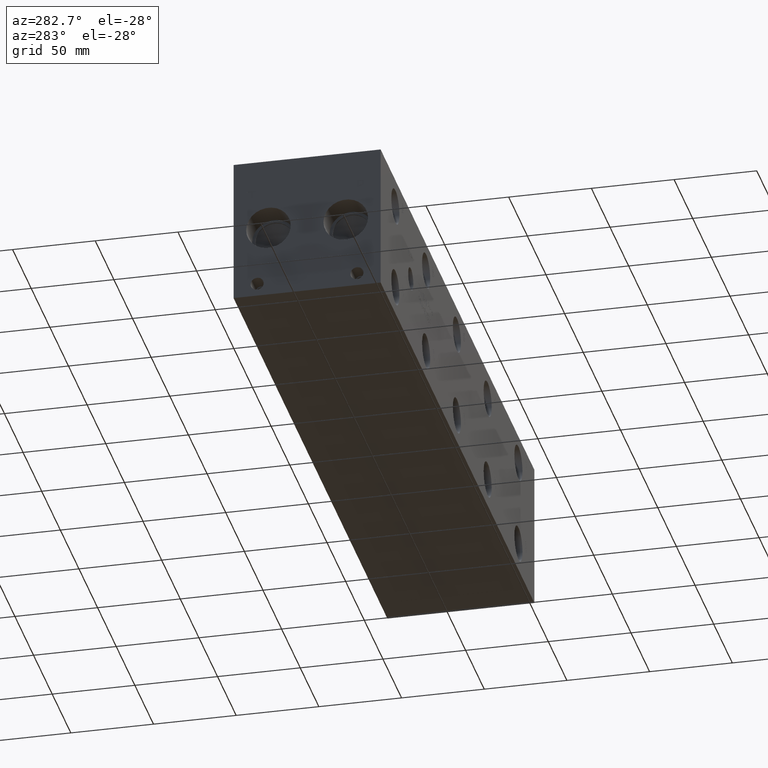
[diagram: clean part render]
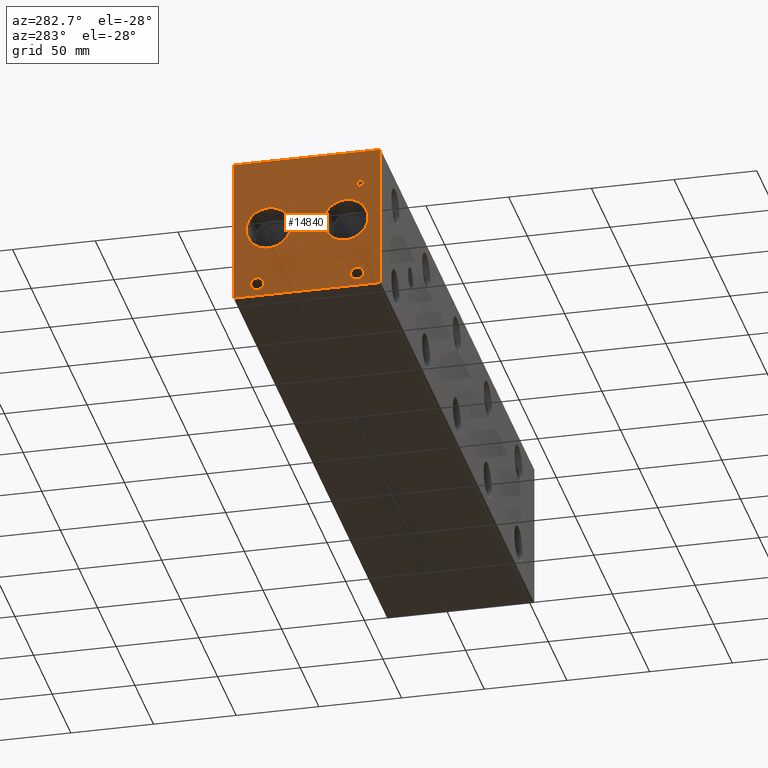
[diagram: same view with one face highlighted and labeled with its STEP entity id]
A machine part, auxiliary view. The second image highlights one B-rep face of the part: STEP entity #14840.
In plain terms, the highlighted planar face has unit normal (-1, 0, 0).
Its self-contained STEP definition (entity closure, byte-faithful):
#179=CIRCLE('',#15650,3.9624);
#180=CIRCLE('',#15651,3.9624);
#181=CIRCLE('',#15652,3.9624);
#182=CIRCLE('',#15653,3.9624);
#183=CIRCLE('',#15654,13.462);
#184=CIRCLE('',#15655,13.462);
#185=CIRCLE('',#15656,13.462);
#186=CIRCLE('',#15657,13.462);
#532=FACE_BOUND('',#2150,.T.);
#533=FACE_BOUND('',#2151,.T.);
#534=FACE_BOUND('',#2152,.T.);
#535=FACE_BOUND('',#2153,.T.);
#536=FACE_BOUND('',#2154,.T.);
#537=FACE_BOUND('',#2155,.T.);
#706=B_SPLINE_CURVE_WITH_KNOTS('',2,(#20290,#20291,#20292,#20293),
 .UNSPECIFIED.,.F.,.F.,(3,1,3),(0.,1.,2.),.UNSPECIFIED.);
#708=B_SPLINE_CURVE_WITH_KNOTS('',2,(#20311,#20312,#20313,#20314),
 .UNSPECIFIED.,.F.,.F.,(3,1,3),(0.,1.,2.),.UNSPECIFIED.);
#710=B_SPLINE_CURVE_WITH_KNOTS('',2,(#20360,#20361,#20362,#20363),
 .UNSPECIFIED.,.F.,.F.,(3,1,3),(0.,1.,2.),.UNSPECIFIED.);
#712=B_SPLINE_CURVE_WITH_KNOTS('',2,(#20378,#20379,#20380,#20381),
 .UNSPECIFIED.,.F.,.F.,(3,1,3),(0.,1.,2.),.UNSPECIFIED.);
#1338=FACE_OUTER_BOUND('',#2149,.T.);
#2149=EDGE_LOOP('',(#9745,#9746,#9747,#9748));
#2150=EDGE_LOOP('',(#9749,#9750,#9751,#9752,#9753,#9754,#9755,#9756));
#2151=EDGE_LOOP('',(#9757,#9758));
#2152=EDGE_LOOP('',(#9759,#9760));
#2153=EDGE_LOOP('',(#9761,#9762));
#2154=EDGE_LOOP('',(#9763,#9764));
#2155=EDGE_LOOP('',(#9765,#9766,#9767,#9768,#9769,#9770,#9771,#9772,#9773));
#3109=LINE('',#20140,#4499);
#3113=LINE('',#20148,#4503);
#3116=LINE('',#20154,#4506);
#3119=LINE('',#20160,#4509);
#3122=LINE('',#20166,#4512);
#3125=LINE('',#20172,#4515);
#3128=LINE('',#20178,#4518);
#3131=LINE('',#20183,#4521);
#3149=LINE('',#20323,#4539);
#3152=LINE('',#20329,#4542);
#3155=LINE('',#20335,#4545);
#3158=LINE('',#20341,#4548);
#3161=LINE('',#20347,#4551);
#3165=LINE('',#20390,#4555);
#3166=LINE('',#20392,#4556);
#3167=LINE('',#20394,#4557);
#3168=LINE('',#20395,#4558);
#4499=VECTOR('',#16677,10.);
#4503=VECTOR('',#16683,10.);
#4506=VECTOR('',#16688,10.);
#4509=VECTOR('',#16693,10.);
#4512=VECTOR('',#16698,10.);
#4515=VECTOR('',#16703,10.);
#4518=VECTOR('',#16708,10.);
#4521=VECTOR('',#16713,10.);
#4539=VECTOR('',#16741,10.);
#4542=VECTOR('',#16746,10.);
#4545=VECTOR('',#16751,10.);
#4548=VECTOR('',#16756,10.);
#4551=VECTOR('',#16761,10.);
#4555=VECTOR('',#16769,10.);
#4556=VECTOR('',#16770,10.);
#4557=VECTOR('',#16771,10.);
#4558=VECTOR('',#16772,10.);
#5889=VERTEX_POINT('',#20138);
#5890=VERTEX_POINT('',#20139);
#5893=VERTEX_POINT('',#20147);
#5895=VERTEX_POINT('',#20153);
#5897=VERTEX_POINT('',#20159);
#5899=VERTEX_POINT('',#20165);
#5901=VERTEX_POINT('',#20171);
#5903=VERTEX_POINT('',#20177);
#5919=VERTEX_POINT('',#20288);
#5920=VERTEX_POINT('',#20289);
#5923=VERTEX_POINT('',#20310);
#5925=VERTEX_POINT('',#20322);
#5927=VERTEX_POINT('',#20328);
#5929=VERTEX_POINT('',#20334);
#5931=VERTEX_POINT('',#20340);
#5933=VERTEX_POINT('',#20346);
#5935=VERTEX_POINT('',#20359);
#5937=VERTEX_POINT('',#20388);
#5938=VERTEX_POINT('',#20389);
#5939=VERTEX_POINT('',#20391);
#5940=VERTEX_POINT('',#20393);
#5941=VERTEX_POINT('',#20396);
#5942=VERTEX_POINT('',#20397);
#5943=VERTEX_POINT('',#20400);
#5944=VERTEX_POINT('',#20401);
#5945=VERTEX_POINT('',#20404);
#5946=VERTEX_POINT('',#20405);
#5947=VERTEX_POINT('',#20408);
#5948=VERTEX_POINT('',#20409);
#7415=EDGE_CURVE('',#5889,#5890,#3109,.T.);
#7419=EDGE_CURVE('',#5893,#5889,#3113,.T.);
#7422=EDGE_CURVE('',#5895,#5893,#3116,.T.);
#7425=EDGE_CURVE('',#5897,#5895,#3119,.T.);
#7428=EDGE_CURVE('',#5899,#5897,#3122,.T.);
#7431=EDGE_CURVE('',#5901,#5899,#3125,.T.);
#7434=EDGE_CURVE('',#5903,#5901,#3128,.T.);
#7437=EDGE_CURVE('',#5890,#5903,#3131,.T.);
#7460=EDGE_CURVE('',#5919,#5920,#706,.T.);
#7464=EDGE_CURVE('',#5923,#5919,#708,.T.);
#7467=EDGE_CURVE('',#5925,#5923,#3149,.T.);
#7470=EDGE_CURVE('',#5927,#5925,#3152,.T.);
#7473=EDGE_CURVE('',#5929,#5927,#3155,.T.);
#7476=EDGE_CURVE('',#5931,#5929,#3158,.T.);
#7479=EDGE_CURVE('',#5933,#5931,#3161,.T.);
#7482=EDGE_CURVE('',#5935,#5933,#710,.T.);
#7485=EDGE_CURVE('',#5920,#5935,#712,.T.);
#7487=EDGE_CURVE('',#5937,#5938,#3165,.T.);
#7488=EDGE_CURVE('',#5938,#5939,#3166,.T.);
#7489=EDGE_CURVE('',#5940,#5939,#3167,.T.);
#7490=EDGE_CURVE('',#5937,#5940,#3168,.T.);
#7491=EDGE_CURVE('',#5941,#5942,#179,.T.);
#7492=EDGE_CURVE('',#5942,#5941,#180,.T.);
#7493=EDGE_CURVE('',#5943,#5944,#181,.T.);
#7494=EDGE_CURVE('',#5944,#5943,#182,.T.);
#7495=EDGE_CURVE('',#5945,#5946,#183,.T.);
#7496=EDGE_CURVE('',#5946,#5945,#184,.T.);
#7497=EDGE_CURVE('',#5947,#5948,#185,.T.);
#7498=EDGE_CURVE('',#5948,#5947,#186,.T.);
#9745=ORIENTED_EDGE('',*,*,#7487,.T.);
#9746=ORIENTED_EDGE('',*,*,#7488,.T.);
#9747=ORIENTED_EDGE('',*,*,#7489,.F.);
#9748=ORIENTED_EDGE('',*,*,#7490,.F.);
#9749=ORIENTED_EDGE('',*,*,#7415,.T.);
#9750=ORIENTED_EDGE('',*,*,#7437,.T.);
#9751=ORIENTED_EDGE('',*,*,#7434,.T.);
#9752=ORIENTED_EDGE('',*,*,#7431,.T.);
#9753=ORIENTED_EDGE('',*,*,#7428,.T.);
#9754=ORIENTED_EDGE('',*,*,#7425,.T.);
#9755=ORIENTED_EDGE('',*,*,#7422,.T.);
#9756=ORIENTED_EDGE('',*,*,#7419,.T.);
#9757=ORIENTED_EDGE('',*,*,#7491,.T.);
#9758=ORIENTED_EDGE('',*,*,#7492,.T.);
#9759=ORIENTED_EDGE('',*,*,#7493,.T.);
#9760=ORIENTED_EDGE('',*,*,#7494,.T.);
#9761=ORIENTED_EDGE('',*,*,#7495,.T.);
#9762=ORIENTED_EDGE('',*,*,#7496,.T.);
#9763=ORIENTED_EDGE('',*,*,#7497,.T.);
#9764=ORIENTED_EDGE('',*,*,#7498,.T.);
#9765=ORIENTED_EDGE('',*,*,#7460,.T.);
#9766=ORIENTED_EDGE('',*,*,#7485,.T.);
#9767=ORIENTED_EDGE('',*,*,#7482,.T.);
#9768=ORIENTED_EDGE('',*,*,#7479,.T.);
#9769=ORIENTED_EDGE('',*,*,#7476,.T.);
#9770=ORIENTED_EDGE('',*,*,#7473,.T.);
#9771=ORIENTED_EDGE('',*,*,#7470,.T.);
#9772=ORIENTED_EDGE('',*,*,#7467,.T.);
#9773=ORIENTED_EDGE('',*,*,#7464,.T.);
#13803=PLANE('',#15649);
#14840=ADVANCED_FACE('',(#1338,#532,#533,#534,#535,#536,#537),#13803,.T.);
#15649=AXIS2_PLACEMENT_3D('',#20387,#16767,#16768);
#15650=AXIS2_PLACEMENT_3D('',#20398,#16773,#16774);
#15651=AXIS2_PLACEMENT_3D('',#20399,#16775,#16776);
#15652=AXIS2_PLACEMENT_3D('',#20402,#16777,#16778);
#15653=AXIS2_PLACEMENT_3D('',#20403,#16779,#16780);
#15654=AXIS2_PLACEMENT_3D('',#20406,#16781,#16782);
#15655=AXIS2_PLACEMENT_3D('',#20407,#16783,#16784);
#15656=AXIS2_PLACEMENT_3D('',#20410,#16785,#16786);
#15657=AXIS2_PLACEMENT_3D('',#20411,#16787,#16788);
#16677=DIRECTION('',(0.,1.,0.));
#16683=DIRECTION('',(0.,3.17280044688052E-15,-1.));
#16688=DIRECTION('',(0.,1.,0.));
#16693=DIRECTION('',(0.,0.,-1.));
#16698=DIRECTION('',(0.,-1.,-1.73992282570867E-15));
#16703=DIRECTION('',(0.,0.,1.));
#16708=DIRECTION('',(0.,1.,4.16909044227778E-15));
#16713=DIRECTION('',(0.,-3.17280044688052E-15,1.));
#16741=DIRECTION('',(0.,-1.,0.));
#16746=DIRECTION('',(0.,-3.14708893596576E-15,1.));
#16751=DIRECTION('',(0.,1.,0.));
#16756=DIRECTION('',(0.,2.81413604853751E-15,-1.));
#16761=DIRECTION('',(0.,1.,0.));
#16767=DIRECTION('center_axis',(-1.,0.,0.));
#16768=DIRECTION('ref_axis',(0.,-1.,0.));
#16769=DIRECTION('',(0.,-1.,0.));
#16770=DIRECTION('',(0.,0.,1.));
#16771=DIRECTION('',(0.,-1.,0.));
#16772=DIRECTION('',(0.,0.,1.));
#16773=DIRECTION('center_axis',(1.,0.,0.));
#16774=DIRECTION('ref_axis',(0.,1.,0.));
#16775=DIRECTION('center_axis',(1.,0.,0.));
#16776=DIRECTION('ref_axis',(0.,1.,0.));
#16777=DIRECTION('center_axis',(1.,0.,0.));
#16778=DIRECTION('ref_axis',(0.,1.,0.));
#16779=DIRECTION('center_axis',(1.,0.,0.));
#16780=DIRECTION('ref_axis',(0.,1.,0.));
#16781=DIRECTION('center_axis',(1.,0.,0.));
#16782=DIRECTION('ref_axis',(0.,1.,0.));
#16783=DIRECTION('center_axis',(1.,0.,0.));
#16784=DIRECTION('ref_axis',(0.,1.,0.));
#16785=DIRECTION('center_axis',(1.,0.,0.));
#16786=DIRECTION('ref_axis',(0.,1.,0.));
#16787=DIRECTION('center_axis',(1.,0.,0.));
#16788=DIRECTION('ref_axis',(0.,1.,0.));
#20138=CARTESIAN_POINT('',(0.,77.548834728547,63.5));
#20139=CARTESIAN_POINT('',(0.,78.3927569200865,63.5));
#20140=CARTESIAN_POINT('',(0.,83.2244173642735,63.5));
#20147=CARTESIAN_POINT('',(0.,77.548834728547,69.0987033194815));
#20148=CARTESIAN_POINT('',(0.,77.5488347285471,34.5493516597407));
#20153=CARTESIAN_POINT('',(0.,75.4184457816119,69.0987033194815));
#20154=CARTESIAN_POINT('',(0.,82.1592228908059,69.0987033194815));
#20159=CARTESIAN_POINT('',(0.,75.4184457816119,69.8499999046325));
#20160=CARTESIAN_POINT('',(0.,75.4184457816119,34.9249999523163));
#20165=CARTESIAN_POINT('',(0.,80.5231458670215,69.8499999046325));
#20166=CARTESIAN_POINT('',(0.,84.7115729335107,69.8499999046326));
#20171=CARTESIAN_POINT('',(0.,80.5231458670215,69.0987033194815));
#20172=CARTESIAN_POINT('',(0.,80.5231458670215,34.5493516597408));
#20177=CARTESIAN_POINT('',(0.,78.3927569200865,69.0987033194815));
#20178=CARTESIAN_POINT('',(0.,83.6463784600431,69.0987033194816));
#20183=CARTESIAN_POINT('',(0.,78.3927569200866,31.75));
#20288=CARTESIAN_POINT('',(0.,10.8314327976406,69.4537681439707));
#20289=CARTESIAN_POINT('',(0.,10.074990345468,67.9357373726039));
#20290=CARTESIAN_POINT('Ctrl Pts',(0.,10.8314327976406,69.4537681439707));
#20291=CARTESIAN_POINT('Ctrl Pts',(0.,10.4763679731514,69.2119123939563));
#20292=CARTESIAN_POINT('Ctrl Pts',(0.,10.074990345468,68.4657616758269));
#20293=CARTESIAN_POINT('Ctrl Pts',(0.,10.074990345468,67.9357373726039));
#20310=CARTESIAN_POINT('',(0.,12.4935478456117,69.8499999046325));
#20311=CARTESIAN_POINT('Ctrl Pts',(0.,12.4935478456117,69.8499999046325));
#20312=CARTESIAN_POINT('Ctrl Pts',(0.,11.9275024732376,69.8499999046325));
#20313=CARTESIAN_POINT('Ctrl Pts',(0.,11.1350389519139,69.6647486918556));
#20314=CARTESIAN_POINT('Ctrl Pts',(0.,10.8314327976406,69.4537681439707));
#20322=CARTESIAN_POINT('',(0.,14.0887666223022,69.8499999046325));
#20323=CARTESIAN_POINT('',(0.,51.4943833111511,69.8499999046325));
#20328=CARTESIAN_POINT('',(0.,14.0887666223022,63.5));
#20329=CARTESIAN_POINT('',(0.,14.0887666223023,31.7499999999999));
#20334=CARTESIAN_POINT('',(0.,13.2448444307627,63.5));
#20335=CARTESIAN_POINT('',(0.,51.0724222153814,63.5));
#20340=CARTESIAN_POINT('',(0.,13.2448444307627,65.8670988299278));
#20341=CARTESIAN_POINT('',(0.,13.2448444307628,32.9335494149638));
#20346=CARTESIAN_POINT('',(0.,12.5295689147628,65.8670988299278));
#20347=CARTESIAN_POINT('',(0.,50.7147844573814,65.8670988299278));
#20359=CARTESIAN_POINT('',(0.,10.6307439837989,66.5257698086904));
#20360=CARTESIAN_POINT('Ctrl Pts',(0.,10.6307439837989,66.5257698086904));
#20361=CARTESIAN_POINT('Ctrl Pts',(0.,10.9600794731802,66.2015801863307));
#20362=CARTESIAN_POINT('Ctrl Pts',(0.,11.8503144679139,65.8670988299278));
#20363=CARTESIAN_POINT('Ctrl Pts',(0.,12.5295689147628,65.8670988299278));
#20378=CARTESIAN_POINT('Ctrl Pts',(0.,10.074990345468,67.9357373726039));
#20379=CARTESIAN_POINT('Ctrl Pts',(0.,10.074990345468,67.5240680108773));
#20380=CARTESIAN_POINT('Ctrl Pts',(0.,10.3683047656982,66.7830631597695));
#20381=CARTESIAN_POINT('Ctrl Pts',(0.,10.6307439837989,66.5257698086904));
#20387=CARTESIAN_POINT('Origin',(0.,88.9,0.));
#20388=CARTESIAN_POINT('',(0.,88.9,0.));
#20389=CARTESIAN_POINT('',(0.,0.,0.));
#20390=CARTESIAN_POINT('',(0.,88.9,0.));
#20391=CARTESIAN_POINT('',(0.,0.,88.9));
#20392=CARTESIAN_POINT('',(0.,0.,0.));
#20393=CARTESIAN_POINT('',(0.,88.9,88.9));
#20394=CARTESIAN_POINT('',(0.,88.9,88.9));
#20395=CARTESIAN_POINT('',(0.,88.9,0.));
#20396=CARTESIAN_POINT('',(0.,18.2372,7.92479999999999));
#20397=CARTESIAN_POINT('',(0.,10.3124,7.92479999999999));
#20398=CARTESIAN_POINT('Origin',(0.,14.2748,7.92479999999999));
#20399=CARTESIAN_POINT('Origin',(0.,14.2748,7.92479999999999));
#20400=CARTESIAN_POINT('',(0.,78.5876,7.92479999999999));
#20401=CARTESIAN_POINT('',(0.,70.6628,7.92479999999999));
#20402=CARTESIAN_POINT('Origin',(0.,74.6252,7.92479999999999));
#20403=CARTESIAN_POINT('Origin',(0.,74.6252,7.92479999999999));
#20404=CARTESIAN_POINT('',(0.,81.28,44.45));
#20405=CARTESIAN_POINT('',(1.11022302462516E-15,54.356,44.45));
#20406=CARTESIAN_POINT('Origin',(0.,67.818,44.45));
#20407=CARTESIAN_POINT('Origin',(0.,67.818,44.45));
#20408=CARTESIAN_POINT('',(0.,34.544,44.45));
#20409=CARTESIAN_POINT('',(1.11022302462516E-15,7.62,44.45));
#20410=CARTESIAN_POINT('Origin',(0.,21.082,44.45));
#20411=CARTESIAN_POINT('Origin',(0.,21.082,44.45));